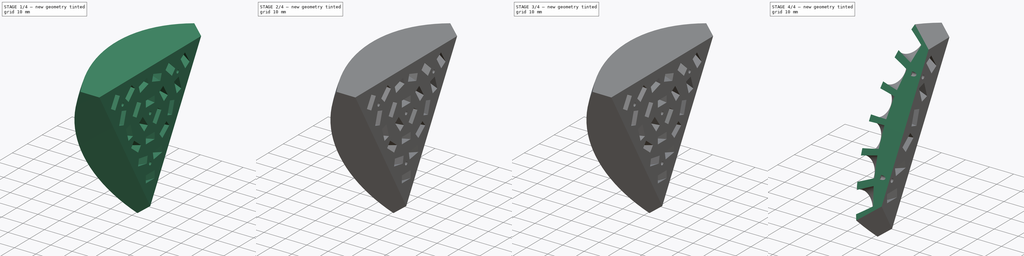
[diagram: build sequence overview — one tinted view per stage of 4, left to right]
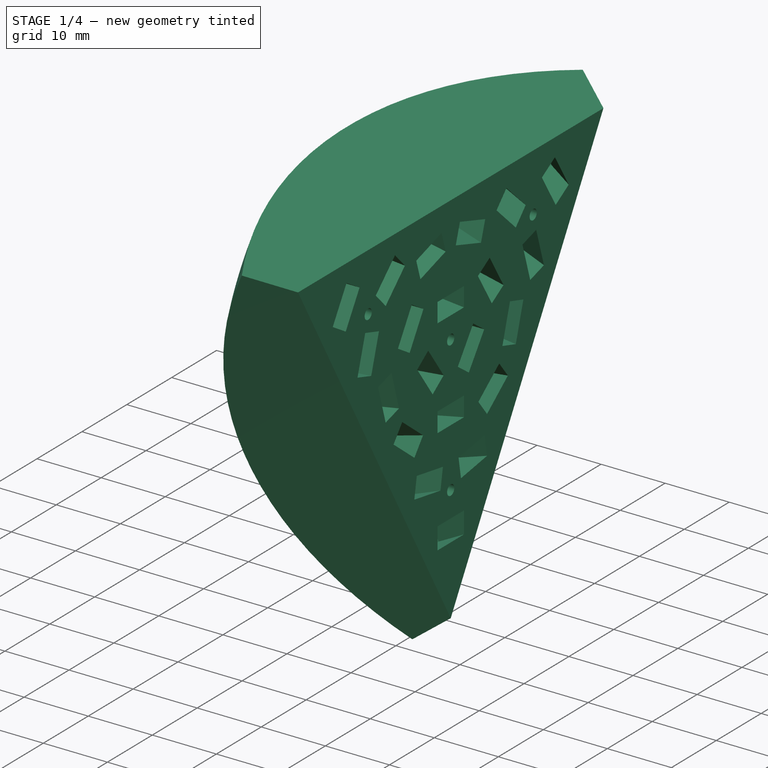
[diagram: stage 1 of 4 — iso view after this stage's code; geometry added in this stage tinted green]
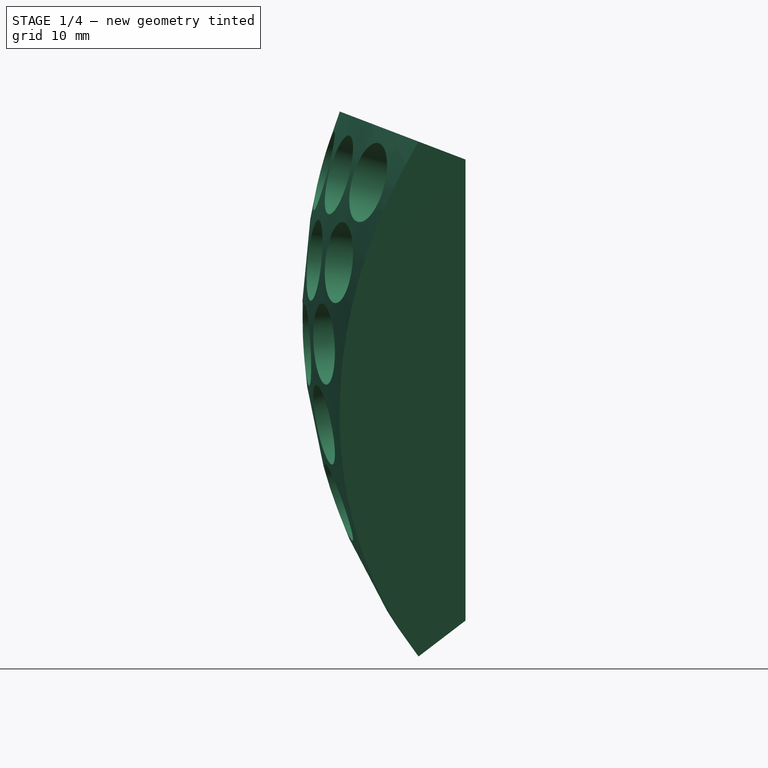
[diagram: stage 1 of 4 — front view after this stage's code; geometry added in this stage tinted green]
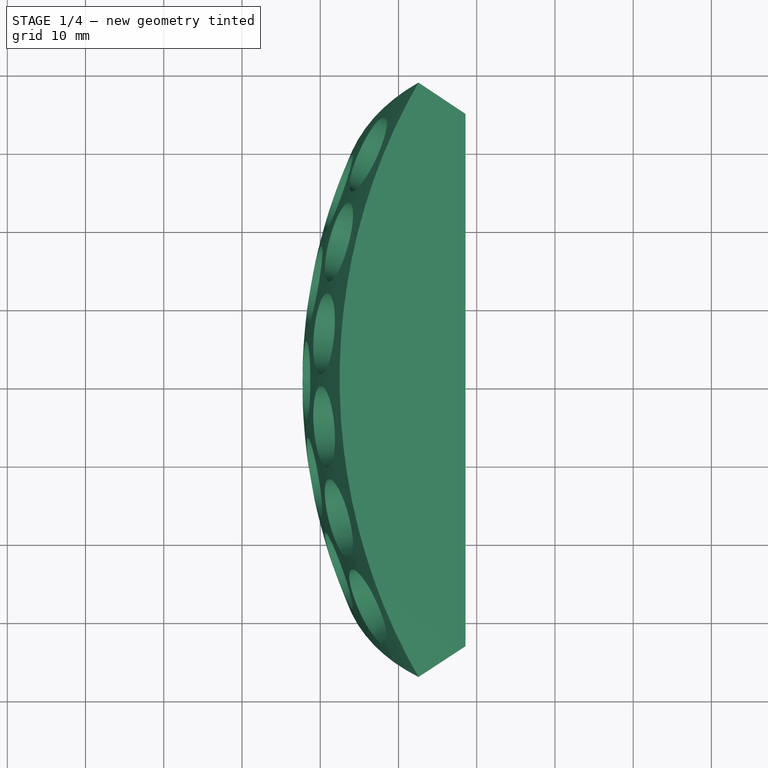
[diagram: stage 1 of 4 — top view after this stage's code; geometry added in this stage tinted green]
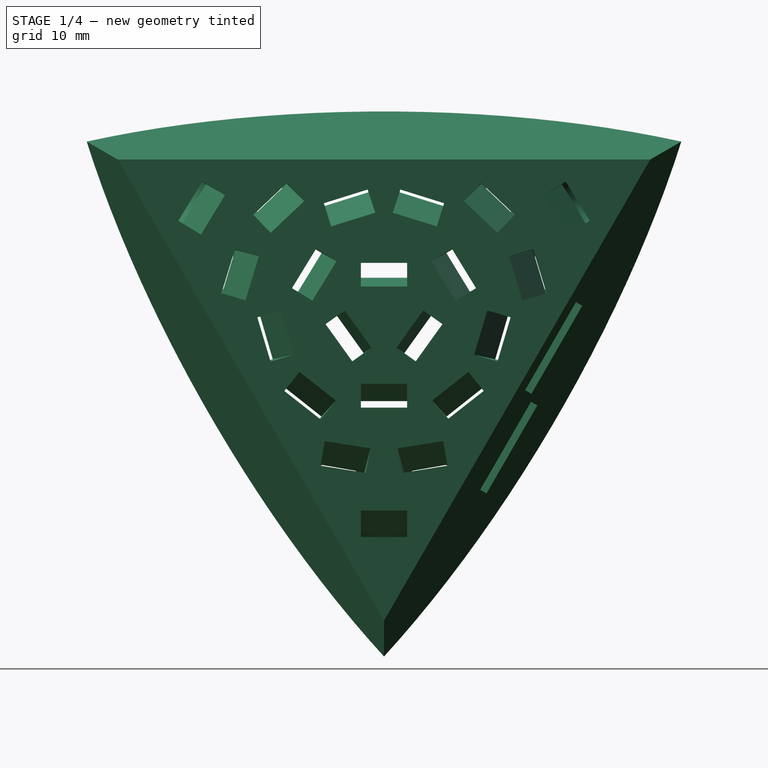
[diagram: stage 1 of 4 — right view after this stage's code; geometry added in this stage tinted green]
FCSTD DOCUMENT  (FreeCAD 0.19R24276 (Git))
Label: interlock_trial
License: All rights reserved
LicenseURL: http://en.wikipedia.org/wiki/All_rights_reserved
objects: Sketcher::SketchObject×6, PartDesign::Chamfer×4, PartDesign::Pocket×3, Part::Feature×2, PartDesign::Pad×2, PartDesign::FeatureBase×1, PartDesign::ShapeBinder×1, PartDesign::SubtractiveBox×1, PartDesign::Body×1
note: 31 computed .brp shape members not serialized (recipe doc carries the construction recipe); baked Part::Feature solids carry a one-line shape summary decoded from their .brp

FEATURE [Part::Feature] Shape002  label="Shell"
  shape: bbox 24.38 x 79.76 x 69.75 mm, 139 faces (baked)
FEATURE [Part::Feature] Shape003  label="PCB"
  shape: bbox 1.6 x 62.65 x 54.25 mm, 30 faces (baked)
FEATURE [PartDesign::FeatureBase] BaseFeature
  BaseFeature = -> Shape002
FEATURE [PartDesign::ShapeBinder] ShapeBinder
  Support = -> [BaseFeature]
  TraceSupport = false
FEATURE [Sketcher::SketchObject] Sketch
  ExternalGeometry = -> [BaseFeature]
  FullyConstrained = false
  MapMode = 5
  Placement = pos=(-6.08e-14,-1.38e-13,7.97e-14) rot=(0.091852,0.862364,0.497886;2.82605rad)
  Support = -> [ShapeBinder]
  sketch-geometry (32):
    g0: LineSegment StartX=55.0625 StartY=34.0305 StartZ=0 EndX=55.0625 EndY=2.84e-14 EndZ=0
    g1: LineSegment StartX=55.0625 StartY=2.84e-14 StartZ=0 EndX=55.0625 EndY=-34.0305 EndZ=0
    g2: LineSegment StartX=57.0625 StartY=0 StartZ=0 EndX=61.0625 EndY=0 EndZ=0
    g3: LineSegment StartX=61.0625 StartY=0 StartZ=0 EndX=61.0625 EndY=14 EndZ=0
    g4: LineSegment StartX=61.0625 StartY=14 StartZ=0 EndX=57.0625 EndY=14 EndZ=0
    g5: LineSegment StartX=57.0625 StartY=14 StartZ=0 EndX=57.0625 EndY=0 EndZ=0
    g6: LineSegment StartX=61.0625 StartY=0 StartZ=0 EndX=65.0625 EndY=0 EndZ=0
    g7: LineSegment StartX=65.0625 StartY=0 StartZ=0 EndX=65.0625 EndY=-14 EndZ=0
    g8: LineSegment StartX=65.0625 StartY=-14 StartZ=0 EndX=61.0625 EndY=-14 EndZ=0
    g9: LineSegment StartX=61.0625 StartY=-14 StartZ=0 EndX=61.0625 EndY=0 EndZ=0
    g10: LineSegment StartX=61.0625 StartY=14 StartZ=0 EndX=65.0625 EndY=14 EndZ=0
    g11: LineSegment StartX=65.0625 StartY=14 StartZ=0 EndX=65.0625 EndY=0 EndZ=0
    g12: LineSegment StartX=65.0625 StartY=0 StartZ=0 EndX=61.0625 EndY=0 EndZ=0
    g13: LineSegment StartX=61.0625 StartY=0 StartZ=0 EndX=61.0625 EndY=14 EndZ=0
    g14: LineSegment StartX=61.0625 StartY=-14 StartZ=0 EndX=57.0625 EndY=-14 EndZ=0
    g15: LineSegment StartX=57.0625 StartY=-14 StartZ=0 EndX=57.0625 EndY=0 EndZ=0
    g16: LineSegment StartX=57.0625 StartY=0 StartZ=0 EndX=61.0625 EndY=0 EndZ=0
    g17: LineSegment StartX=61.0625 StartY=0 StartZ=0 EndX=61.0625 EndY=-14 EndZ=0
    g18: LineSegment StartX=61.4625 StartY=-0.4 StartZ=0 EndX=64.5625 EndY=-0.4 EndZ=0
    g19: LineSegment StartX=64.5625 StartY=-0.4 StartZ=0 EndX=64.5625 EndY=-13.4 EndZ=0
    g20: LineSegment StartX=64.5625 StartY=-13.4 StartZ=0 EndX=61.4625 EndY=-13.4 EndZ=0
    g21: LineSegment StartX=61.4625 StartY=-13.4 StartZ=0 EndX=61.4625 EndY=-0.4 EndZ=0
    g22: LineSegment StartX=57.5625 StartY=13.5 StartZ=0 EndX=60.6625 EndY=13.5 EndZ=0
    g23: LineSegment StartX=60.6625 StartY=13.5 StartZ=0 EndX=60.6625 EndY=0.5 EndZ=0
    g24: LineSegment StartX=60.6625 StartY=0.5 StartZ=0 EndX=57.5625 EndY=0.5 EndZ=0
    g25: LineSegment StartX=57.5625 StartY=0.5 StartZ=0 EndX=57.5625 EndY=13.5 EndZ=0
    g26: Circle CenterX=64.4211 CenterY=21.7235 CenterZ=0 NormalX=0 NormalY=0 NormalZ=1 AngleXU=0 Radius=1
    g27: Circle CenterX=64.4211 CenterY=-21.7235 CenterZ=0 NormalX=0 NormalY=0 NormalZ=1 AngleXU=0 Radius=1
    g28: LineSegment StartX=64.4211 StartY=21.7235 StartZ=0 EndX=64.4211 EndY=-21.7235 EndZ=0
    g29: Circle CenterX=68.6241 CenterY=0 CenterZ=0 NormalX=0 NormalY=0 NormalZ=1 AngleXU=0 Radius=1.51681
    g30: Circle CenterX=68.2561 CenterY=11.656 CenterZ=0 NormalX=0 NormalY=0 NormalZ=1 AngleXU=0 Radius=1.28769
    g31: Circle CenterX=68.2561 CenterY=-11.656 CenterZ=0 NormalX=0 NormalY=0 NormalZ=1 AngleXU=0 Radius=1.24851
  constraints (78):
    c: Coincident(g0,g-3)
    c: Coincident(g1,g-3)
    c: Coincident(g0,g1)
    c: Symmetric(g0,g1,g0)
    c: Coincident(g2,g3)
    c: Coincident(g3,g4)
    c: Coincident(g4,g5)
    c: Coincident(g5,g2)
    c: Horizontal(g2)
    c: Horizontal(g4)
    c: Vertical(g3)
    c: Vertical(g5)
    c: PointOnObject(g2,g-1)
    c: DistanceX(g0,g2) = 2
    c: DistanceY(g5,g5) = 14
    c: DistanceX(g2,g2) = 4
    c: Coincident(g6,g7)
    c: Coincident(g7,g8)
    c: Coincident(g8,g9)
    c: Coincident(g9,g6)
    c: Horizontal(g6)
    c: Horizontal(g8)
    c: Vertical(g7)
    c: Vertical(g9)
    c: Coincident(g6,g2)
    c: Equal(g3,g9)
    c: Equal(g2,g6)
    c: Coincident(g10,g11)
    c: Coincident(g11,g12)
    c: Coincident(g12,g13)
    c: Coincident(g13,g10)
    c: Horizontal(g10)
    c: Horizontal(g12)
    c: Vertical(g11)
    c: Vertical(g13)
    c: Coincident(g10,g3)
    c: Coincident(g11,g6)
    c: Coincident(g14,g15)
    c: Coincident(g15,g16)
    c: Coincident(g16,g17)
    c: Coincident(g17,g14)
    c: Horizontal(g14)
    c: Horizontal(g16)
    c: Vertical(g15)
    c: Vertical(g17)
    c: Coincident(g14,g8)
    c: Coincident(g18,g19)
    c: Coincident(g19,g20)
    c: Coincident(g20,g21)
    c: Coincident(g21,g18)
    c: Horizontal(g18)
    c: Horizontal(g20)
    c: Vertical(g19)
    c: Vertical(g21)
    c: Coincident(g22,g23)
    c: Coincident(g23,g24)
    c: Coincident(g24,g25)
    c: Coincident(g25,g22)
    c: Horizontal(g22)
    c: Horizontal(g24)
    c: Vertical(g23)
    c: Vertical(g25)
    c: Equal(g24,g18)
    c: Equal(g23,g21)
    c: DistanceX(g15,g24) = 0.5
    c: DistanceX(g23,g16) = 0.4
    c: DistanceY(g15,g24) = 0.5
    c: DistanceY(g22,g3) = 0.5
    c: DistanceY(g18,g6) = 0.4
    c: Coincident(g15,g2)
    c: DistanceX(g18,g6) = 0.5
    c: Coincident(g28,g26)
    c: Coincident(g28,g27)
    c: Symmetric(g26,g27,g-1)
    c: Equal(g26,g27)
    c: Radius(g26) = 1
    c: PointOnObject(g29,g-1)
    c: Symmetric(g30,g31,g-1)
FEATURE [Sketcher::SketchObject] Sketch001
  ExternalGeometry = -> [Sketch]
  FullyConstrained = true
  MapMode = 5
  Placement = pos=(-6.08e-14,-1.38e-13,7.97e-14) rot=(0.091852,0.862364,0.497886;2.82605rad)
  Support = -> [ShapeBinder]
  sketch-geometry (4):
    g0: LineSegment StartX=57.5625 StartY=13.5 StartZ=0 EndX=60.6625 EndY=13.5 EndZ=0
    g1: LineSegment StartX=60.6625 StartY=13.5 StartZ=0 EndX=60.6625 EndY=0.5 EndZ=0
    g2: LineSegment StartX=60.6625 StartY=0.5 StartZ=0 EndX=57.5625 EndY=0.5 EndZ=0
    g3: LineSegment StartX=57.5625 StartY=0.5 StartZ=0 EndX=57.5625 EndY=13.5 EndZ=0
  constraints (10):
    c: Coincident(g0,g1)
    c: Coincident(g1,g2)
    c: Coincident(g2,g3)
    c: Coincident(g3,g0)
    c: Horizontal(g0)
    c: Horizontal(g2)
    c: Vertical(g1)
    c: Vertical(g3)
    c: Coincident(g0,g-3)
    c: Coincident(g1,g-4)
FEATURE [PartDesign::Pad] Pad
  BaseFeature = -> BaseFeature
  Direction = (0.356822,0.809017,-0.467086)
  Length = 1
  Length2 = 100
  Profile = -> Sketch001
  Type = 0
FEATURE [Sketcher::SketchObject] Sketch002
  ExternalGeometry = -> [Sketch]
  FullyConstrained = true
  MapMode = 5
  Placement = pos=(-6.08e-14,-1.38e-13,7.97e-14) rot=(0.091852,0.862364,0.497886;2.82605rad)
  Support = -> [Pad]
  sketch-geometry (4):
    g0: LineSegment StartX=61.4625 StartY=-0.4 StartZ=0 EndX=64.5625 EndY=-0.4 EndZ=0
    g1: LineSegment StartX=64.5625 StartY=-0.4 StartZ=0 EndX=64.5625 EndY=-13.4 EndZ=0
    g2: LineSegment StartX=64.5625 StartY=-13.4 StartZ=0 EndX=61.4625 EndY=-13.4 EndZ=0
    g3: LineSegment StartX=61.4625 StartY=-13.4 StartZ=0 EndX=61.4625 EndY=-0.4 EndZ=0
  constraints (10):
    c: Coincident(g0,g1)
    c: Coincident(g1,g2)
    c: Coincident(g2,g3)
    c: Coincident(g3,g0)
    c: Horizontal(g0)
    c: Horizontal(g2)
    c: Vertical(g1)
    c: Vertical(g3)
    c: Coincident(g0,g-3)
    c: Coincident(g1,g-4)
FEATURE [PartDesign::Pad] Pad001
  BaseFeature = -> Pad
  Direction = (0.356822,0.809017,-0.467086)
  Length = 1
  Length2 = 100
  Profile = -> Sketch002
  Type = 0
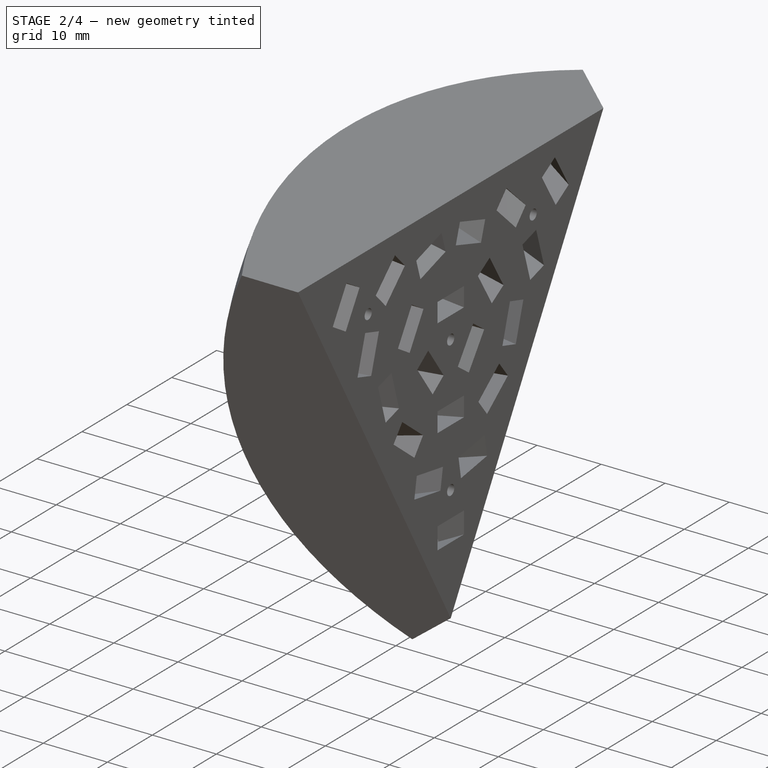
[diagram: stage 2 of 4 — iso view after this stage's code; geometry added in this stage tinted green]
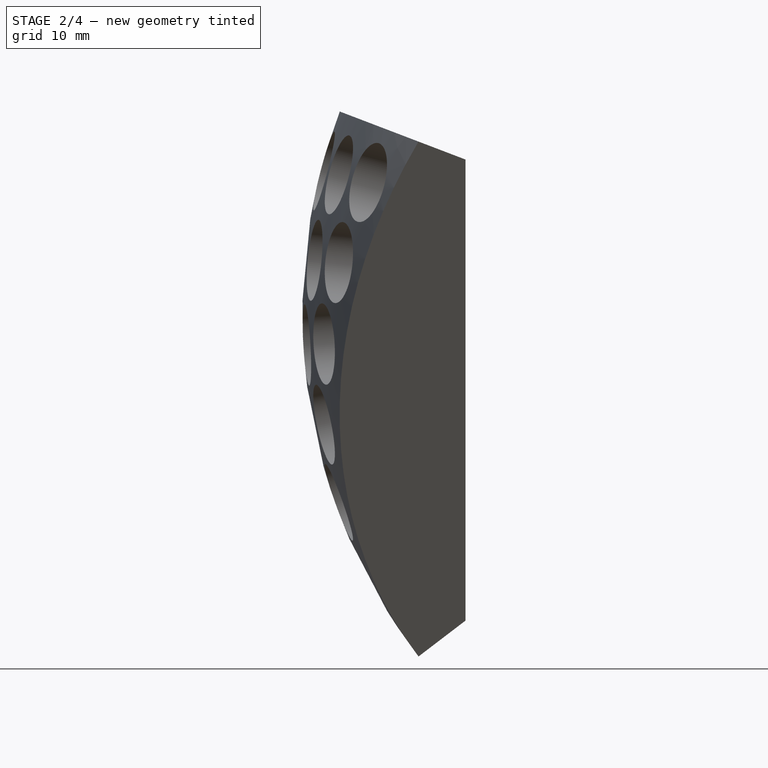
[diagram: stage 2 of 4 — front view after this stage's code; geometry added in this stage tinted green]
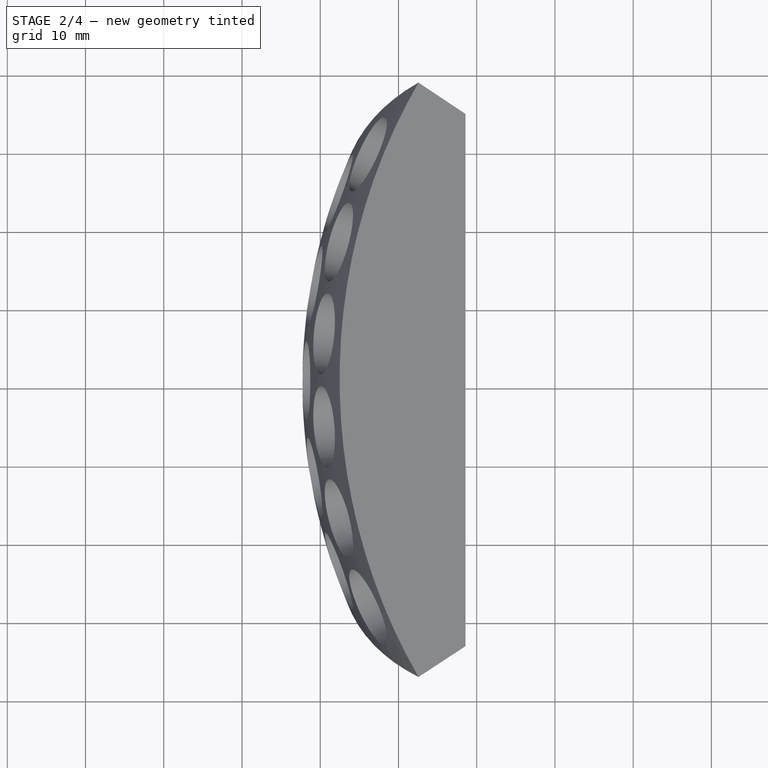
[diagram: stage 2 of 4 — top view after this stage's code; geometry added in this stage tinted green]
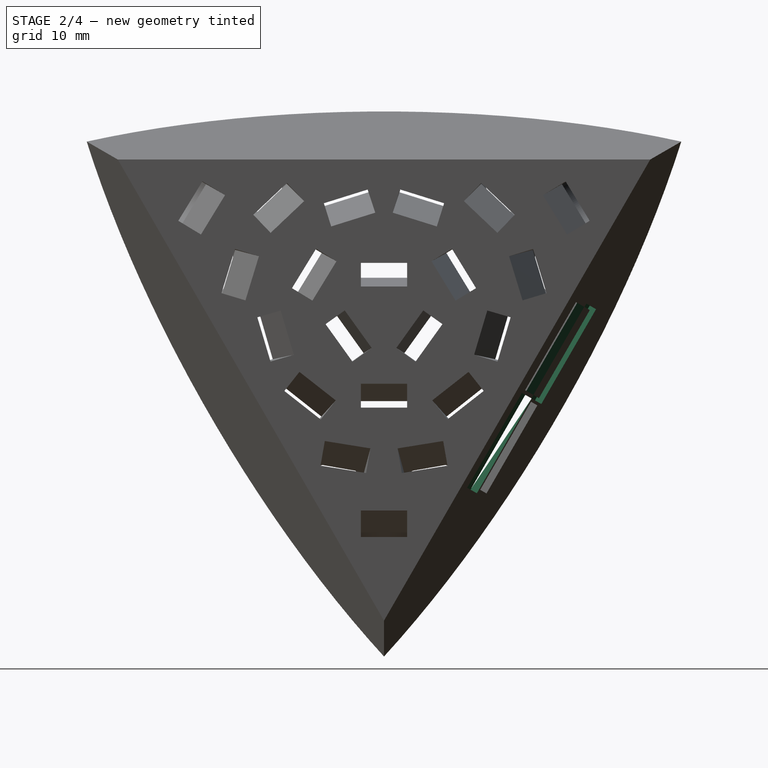
[diagram: stage 2 of 4 — right view after this stage's code; geometry added in this stage tinted green]
FEATURE [Sketcher::SketchObject] Sketch003
  ExternalGeometry = -> [Sketch]
  FullyConstrained = true
  MapMode = 5
  Placement = pos=(-6.08e-14,-1.38e-13,7.97e-14) rot=(0.091852,0.862364,0.497886;2.82605rad)
  Support = -> [ShapeBinder]
  sketch-geometry (4):
    g0: LineSegment StartX=61.0625 StartY=14 StartZ=0 EndX=65.0625 EndY=14 EndZ=0
    g1: LineSegment StartX=65.0625 StartY=14 StartZ=0 EndX=65.0625 EndY=3.6e-15 EndZ=0
    g2: LineSegment StartX=65.0625 StartY=3.6e-15 StartZ=0 EndX=61.0625 EndY=3.6e-15 EndZ=0
    g3: LineSegment StartX=61.0625 StartY=3.6e-15 StartZ=0 EndX=61.0625 EndY=14 EndZ=0
  constraints (10):
    c: Coincident(g0,g1)
    c: Coincident(g1,g2)
    c: Coincident(g2,g3)
    c: Coincident(g3,g0)
    c: Horizontal(g0)
    c: Horizontal(g2)
    c: Vertical(g1)
    c: Vertical(g3)
    c: Coincident(g0,g-3)
    c: Coincident(g1,g-4)
FEATURE [PartDesign::Pocket] Pocket
  BaseFeature = -> Pad001
  Length = 1
  Length2 = 100
  Profile = -> Sketch003
  Type = 0
FEATURE [Sketcher::SketchObject] Sketch004
  ExternalGeometry = -> [Sketch]
  FullyConstrained = true
  MapMode = 5
  Placement = pos=(-6.08e-14,-1.38e-13,7.97e-14) rot=(0.091852,0.862364,0.497886;2.82605rad)
  Support = -> [ShapeBinder]
  sketch-geometry (4):
    g0: LineSegment StartX=57.0625 StartY=-14 StartZ=0 EndX=61.0625 EndY=-14 EndZ=0
    g1: LineSegment StartX=61.0625 StartY=-14 StartZ=0 EndX=61.0625 EndY=0 EndZ=0
    g2: LineSegment StartX=61.0625 StartY=0 StartZ=0 EndX=57.0625 EndY=0 EndZ=0
    g3: LineSegment StartX=57.0625 StartY=0 StartZ=0 EndX=57.0625 EndY=-14 EndZ=0
  constraints (10):
    c: Coincident(g0,g1)
    c: Coincident(g1,g2)
    c: Coincident(g2,g3)
    c: Coincident(g3,g0)
    c: Horizontal(g2)
    c: Vertical(g1)
    c: Vertical(g3)
    c: Coincident(g0,g-4)
    c: PointOnObject(g1,g-1)
    c: Coincident(g0,g-3)
FEATURE [PartDesign::Pocket] Pocket001
  BaseFeature = -> Pocket
  Length = 1
  Length2 = 100
  Profile = -> Sketch004
  Type = 0
FEATURE [PartDesign::Chamfer] Chamfer
  Angle = 45
  Base = -> Pocket001 [Edge204]
  BaseFeature = -> Pocket001
  ChamferType = 0
  FlipDirection = false
  Size = 0.8
  Size2 = 1
  SupportTransform = false
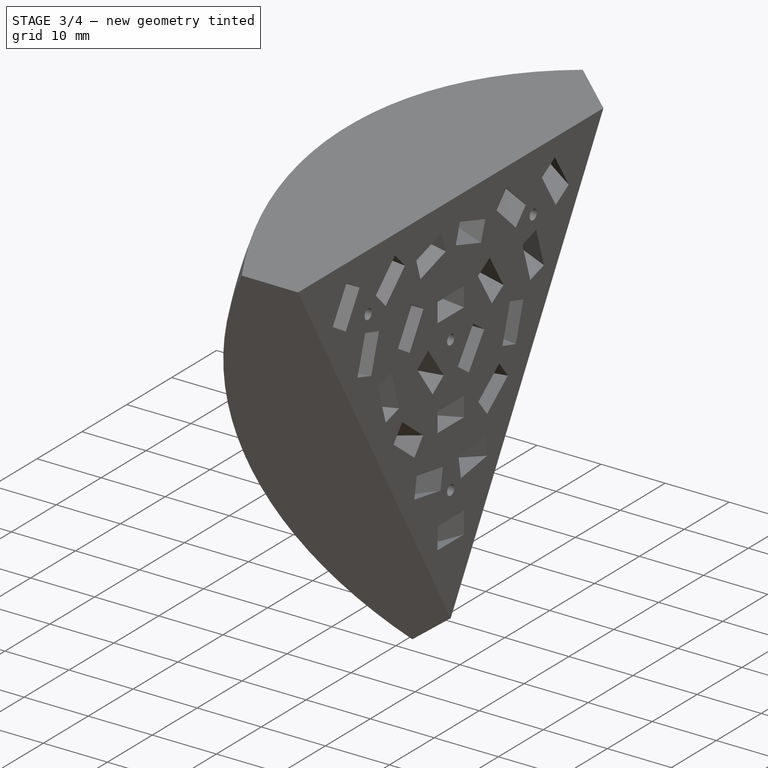
[diagram: stage 3 of 4 — iso view after this stage's code; geometry added in this stage tinted green]
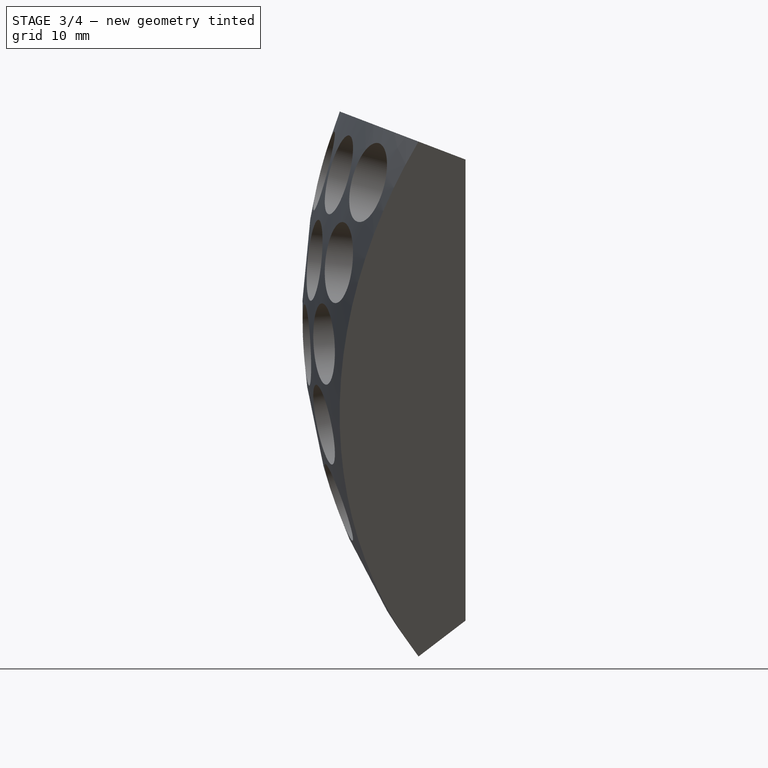
[diagram: stage 3 of 4 — front view after this stage's code; geometry added in this stage tinted green]
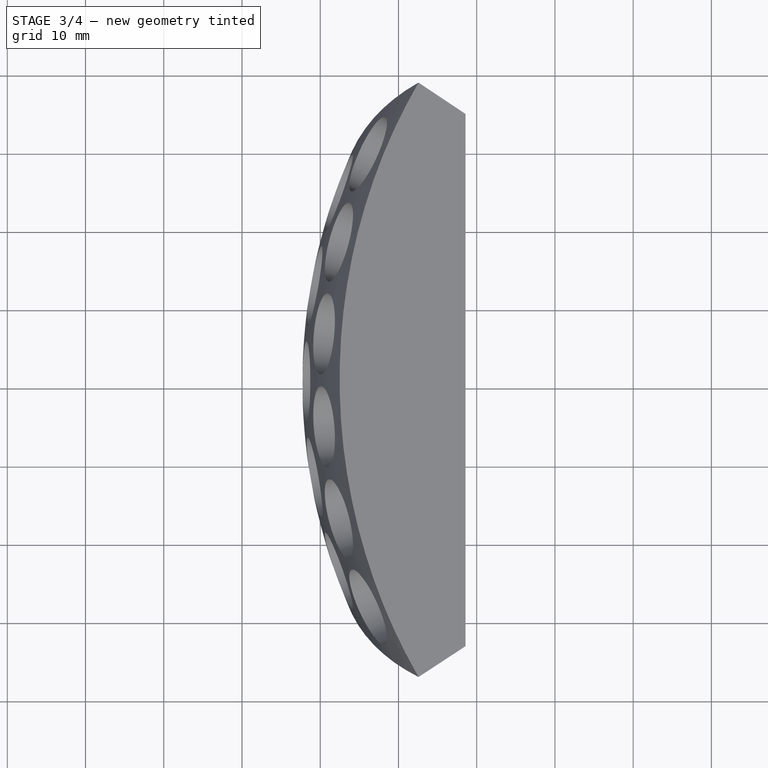
[diagram: stage 3 of 4 — top view after this stage's code; geometry added in this stage tinted green]
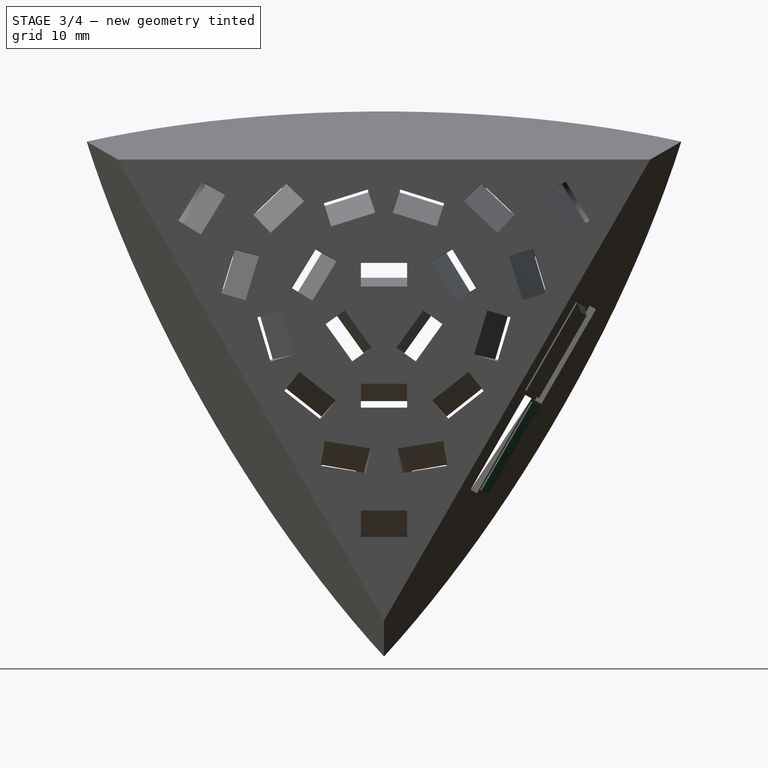
[diagram: stage 3 of 4 — right view after this stage's code; geometry added in this stage tinted green]
FEATURE [PartDesign::Chamfer] Chamfer001
  Angle = 45
  Base = -> Chamfer [Edge150]
  BaseFeature = -> Chamfer
  ChamferType = 0
  FlipDirection = false
  Size = 0.8
  Size2 = 1
  SupportTransform = false
FEATURE [PartDesign::Chamfer] Chamfer002
  Angle = 45
  Base = -> Chamfer001 [Edge163]
  BaseFeature = -> Chamfer001
  ChamferType = 0
  FlipDirection = false
  Size = 0.8
  Size2 = 1
  SupportTransform = false
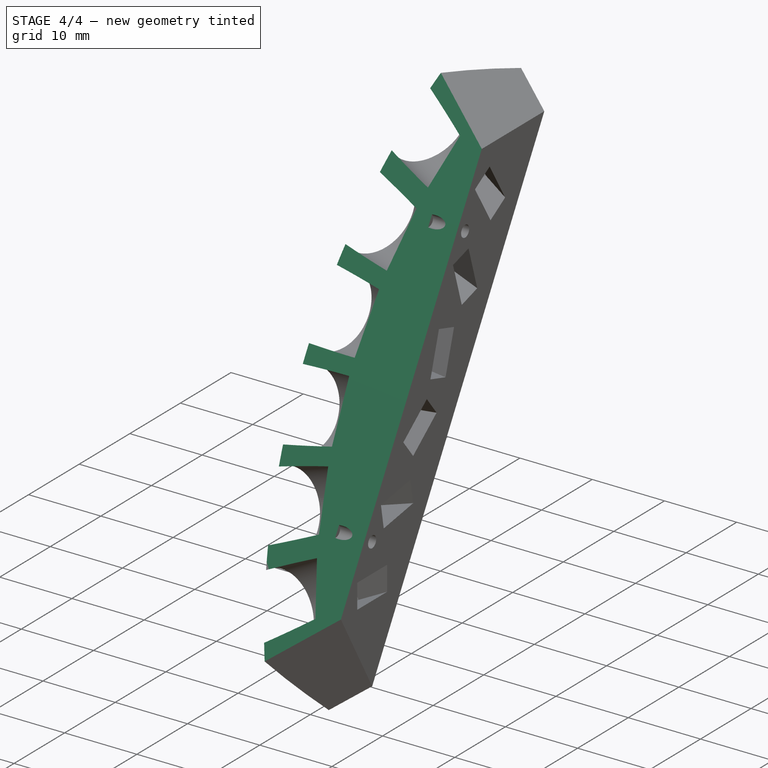
[diagram: stage 4 of 4 — iso view after this stage's code; geometry added in this stage tinted green]
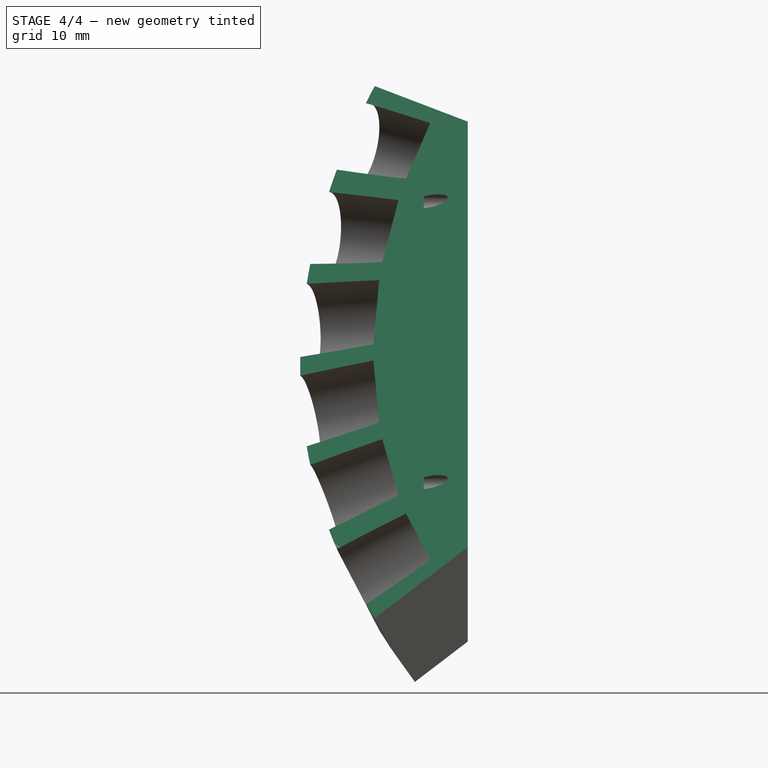
[diagram: stage 4 of 4 — front view after this stage's code; geometry added in this stage tinted green]
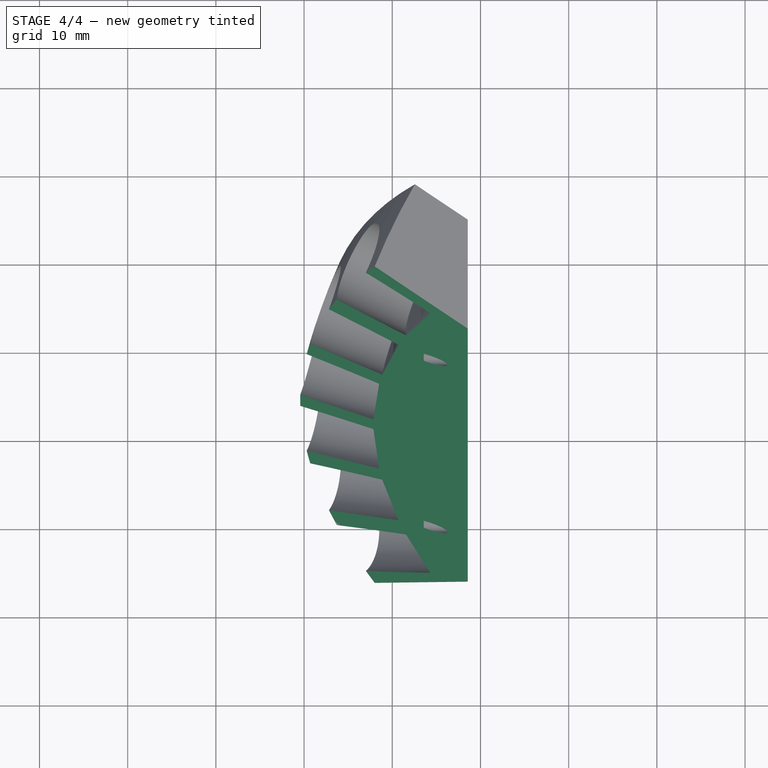
[diagram: stage 4 of 4 — top view after this stage's code; geometry added in this stage tinted green]
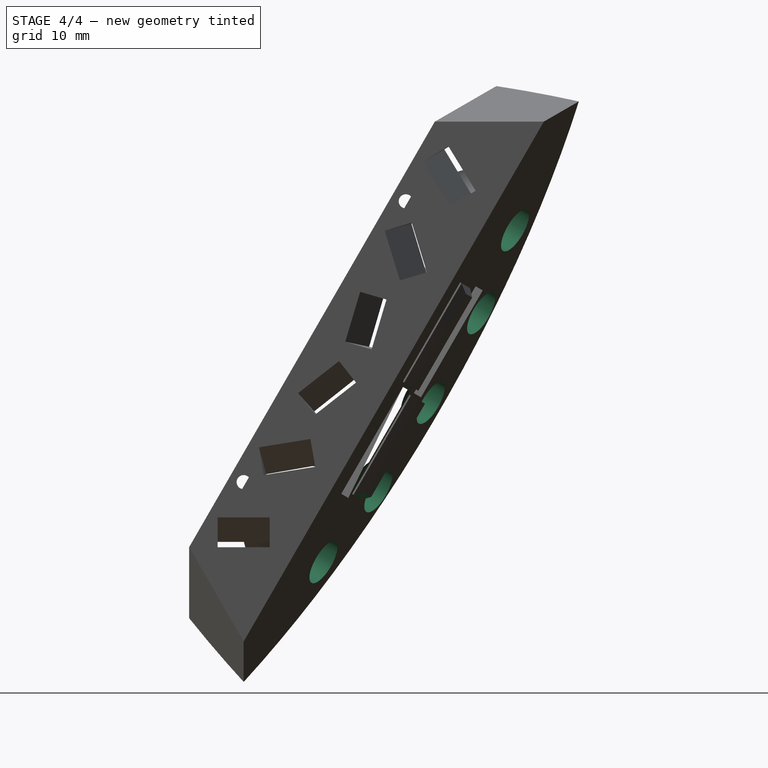
[diagram: stage 4 of 4 — right view after this stage's code; geometry added in this stage tinted green]
FEATURE [PartDesign::Chamfer] Chamfer003
  Angle = 45
  Base = -> Chamfer002 [Edge157]
  BaseFeature = -> Chamfer002
  ChamferType = 0
  FlipDirection = false
  Size = 0.8
  Size2 = 1
  SupportTransform = false
FEATURE [PartDesign::SubtractiveBox] Box
  AttacherType = Attacher::AttachEngine3D
  AttachmentOffset = pos=(0,-50,-110) rot=(0,0,1;0rad)
  BaseFeature = -> Chamfer003
  Height = 100
  Length = 100
  MapMode = 5
  Placement = pos=(-39.2504,-113.992,8.07821) rot=(0.091852,0.862364,0.497886;2.82605rad)
  Support = -> [Chamfer003]
  Width = 100
FEATURE [Sketcher::SketchObject] Sketch005
  ExternalGeometry = -> [Sketch]
  FullyConstrained = true
  MapMode = 5
  Placement = pos=(7.15e-14,-25,-43.3013) rot=(0.091852,0.862364,0.497886;2.82605rad)
  Support = -> [Box]
  sketch-geometry (5):
    g0: Circle CenterX=64.4211 CenterY=71.7235 CenterZ=0 NormalX=0 NormalY=0 NormalZ=1 AngleXU=0 Radius=2.7
    g1: Circle CenterX=64.4211 CenterY=28.2765 CenterZ=0 NormalX=0 NormalY=0 NormalZ=1 AngleXU=0 Radius=2.7
    g2: Circle CenterX=68.6241 CenterY=50 CenterZ=0 NormalX=0 NormalY=0 NormalZ=1 AngleXU=0 Radius=2.7
    g3: Circle CenterX=67.944 CenterY=61.5293 CenterZ=0 NormalX=0 NormalY=0 NormalZ=1 AngleXU=0 Radius=2.7
    g4: Circle CenterX=67.944 CenterY=38.4707 CenterZ=0 NormalX=0 NormalY=0 NormalZ=1 AngleXU=0 Radius=2.7
  constraints (10):
    c: Coincident(g0,g-3)
    c: Coincident(g1,g-4)
    c: Radius(g0) = 2.7
    c: Coincident(g2,g-5)
    c: Coincident(g3,g-6)
    c: Coincident(g4,g-7)
    c: Equal(g0,g3)
    c: Equal(g3,g2)
    c: Equal(g2,g4)
    c: Equal(g4,g1)
FEATURE [PartDesign::Pocket] Pocket002
  BaseFeature = -> Box
  Length = 2.2
  Length2 = 100
  Placement = pos=(-39.2504,-113.992,8.07821) rot=(0.091852,0.862364,0.497886;2.82605rad)
  Profile = -> Sketch005
  Type = 0
FEATURE [PartDesign::Body] Body
  BaseFeature = -> Shape002
  Group = -> [BaseFeature,ShapeBinder,Sketch,Sketch001,Pad,Sketch002,Pad001,Sketch003,Pocket,Sketch004,Pocket001,Chamfer,Chamfer001,Chamfer002,Chamfer003,Box,Sketch005,Pocket002]
  Origin = -> Origin
  Tip = -> Pocket002
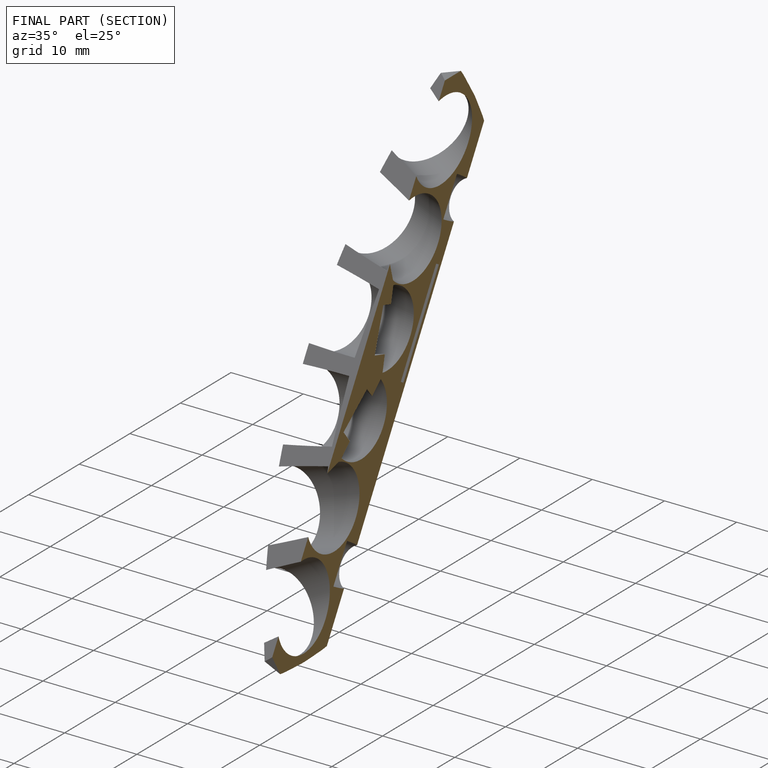
[diagram: finished part — half-section view (interior)]
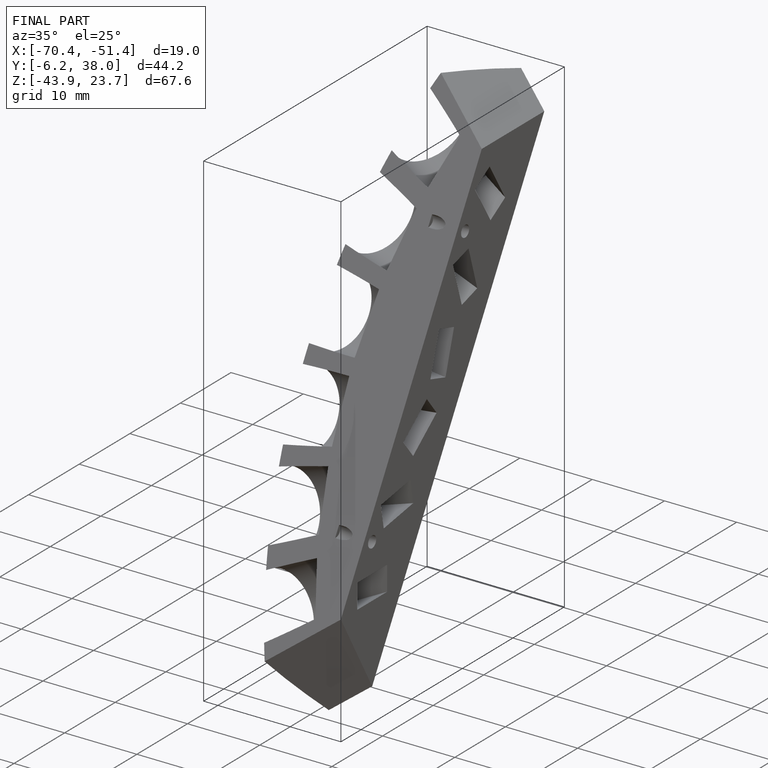
[diagram: finished part — iso view with bounding-box wireframe]
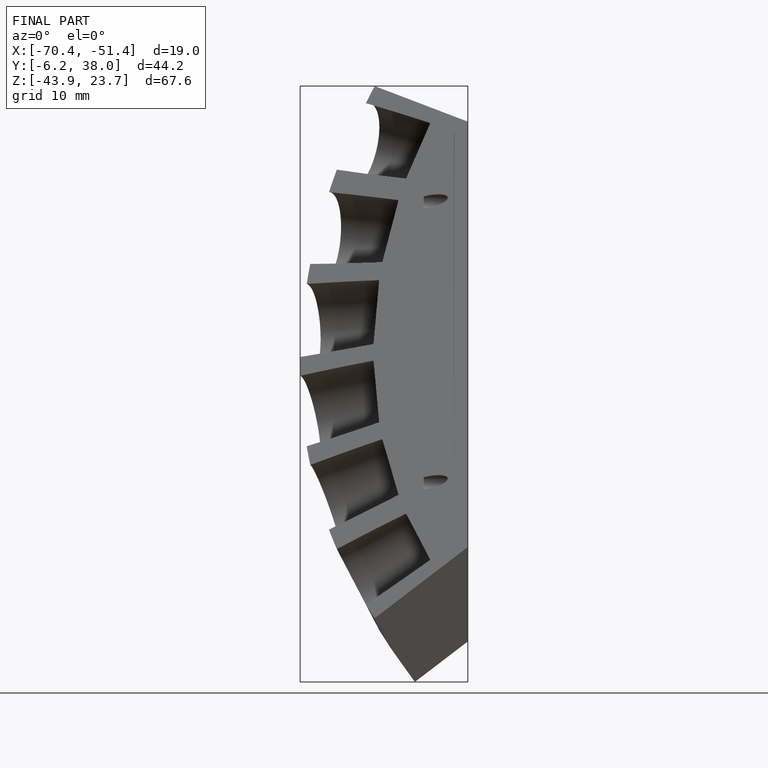
[diagram: finished part — front view with bounding-box wireframe]
